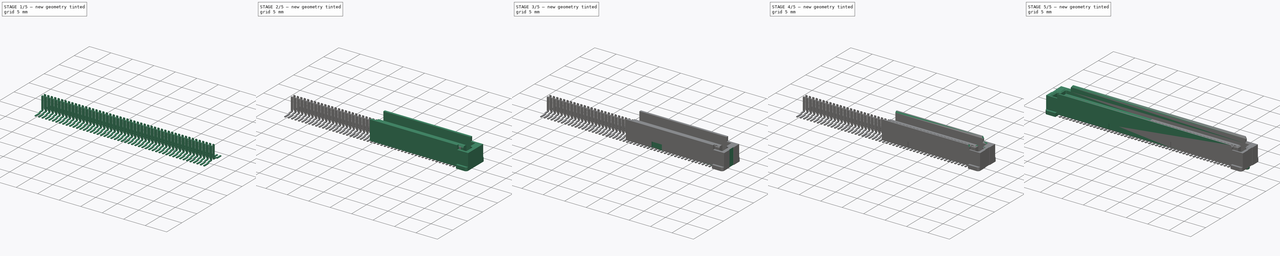
[diagram: build sequence overview — one tinted view per stage of 5, left to right]
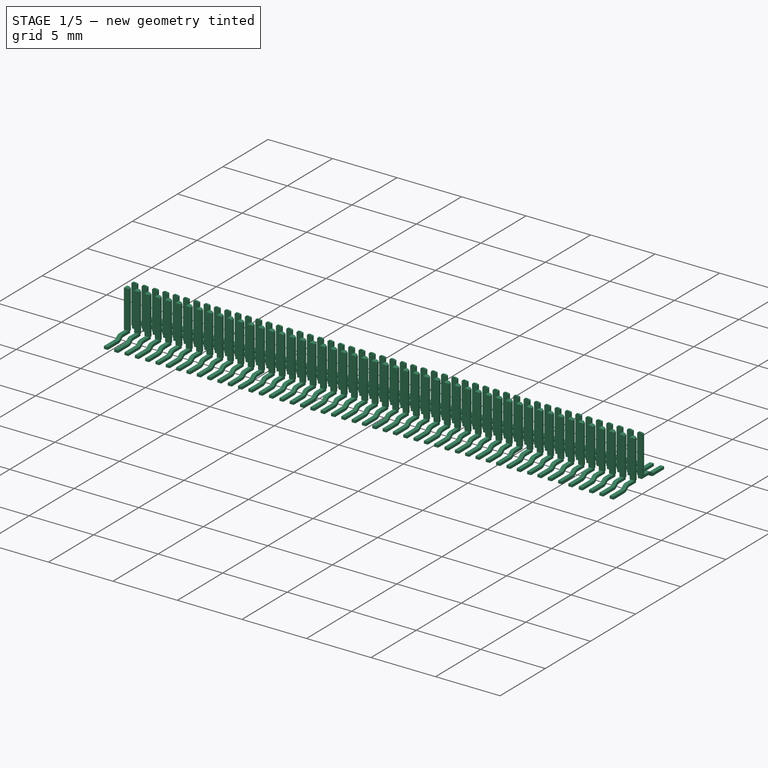
[diagram: stage 1 of 5 — iso view after this stage's code; geometry added in this stage tinted green]
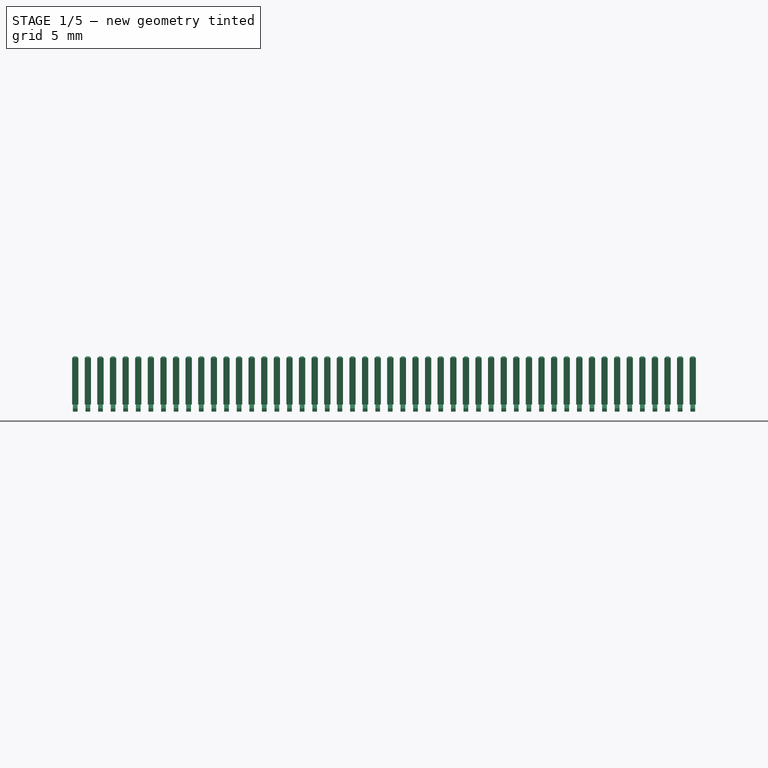
[diagram: stage 1 of 5 — front view after this stage's code; geometry added in this stage tinted green]
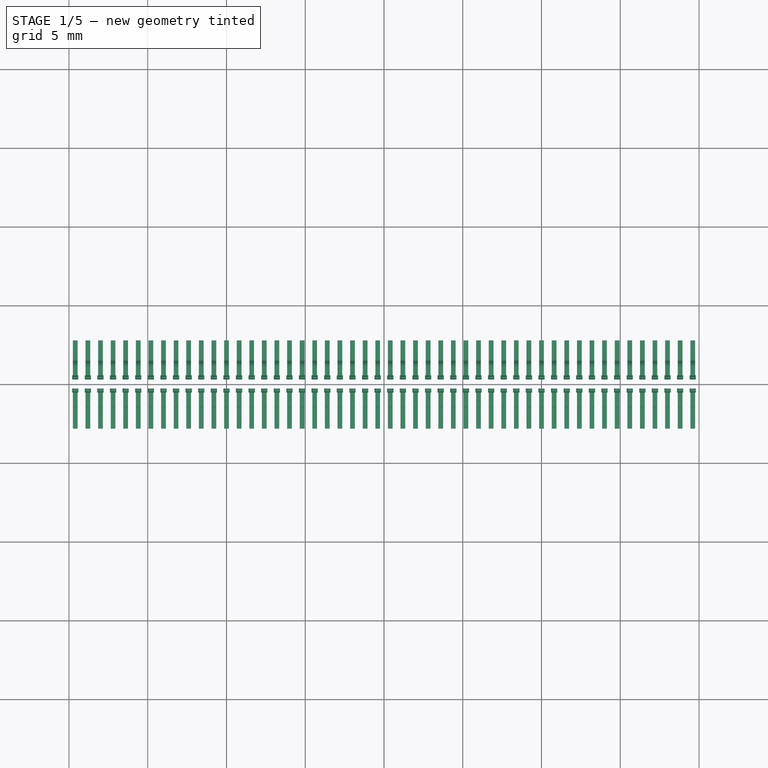
[diagram: stage 1 of 5 — top view after this stage's code; geometry added in this stage tinted green]
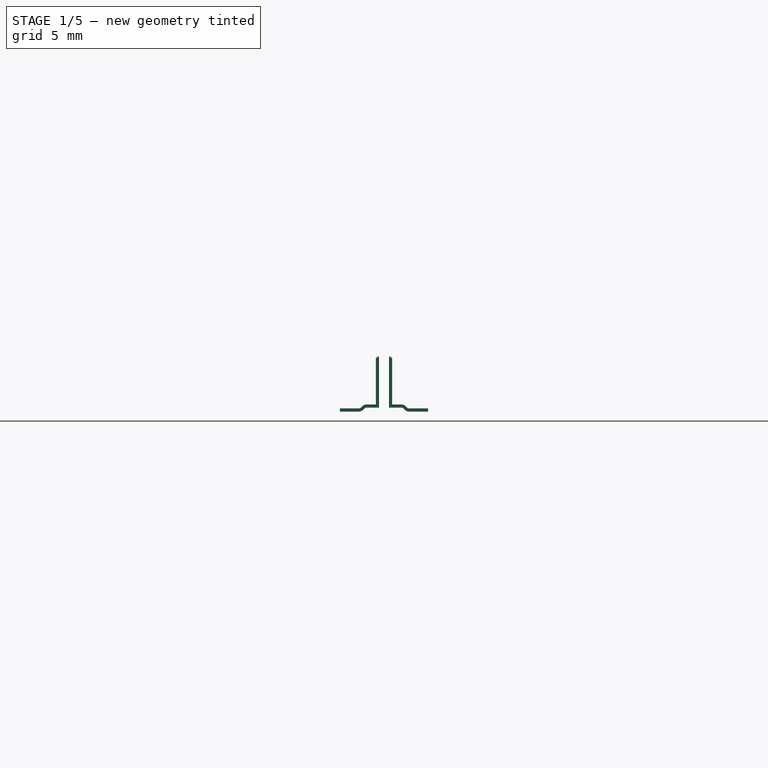
[diagram: stage 1 of 5 — right view after this stage's code; geometry added in this stage tinted green]
FCSTD DOCUMENT  (FreeCAD 1.0R38641 +468 (Git))
Label: test
License: All rights reserved
objects: Sketcher::SketchObject×14, PartDesign::Pocket×10, PartDesign::Chamfer×7, PartDesign::Pad×4, PartDesign::Body×3, PartDesign::Plane×2, Part::Mirroring×2, Spreadsheet::Sheet×1, PartDesign::LinearPattern×1, PartDesign::Mirrored×1, PartDesign::MultiTransform×1, Part::MultiFuse×1, PartDesign::FeatureBase×1, PartDesign::Fillet×1, Part::FeaturePython×1, Part::Compound×1
note: 111 computed .brp shape members not serialized (recipe doc carries the construction recipe); baked Part::Feature solids carry a one-line shape summary decoded from their .brp

FEATURE [PartDesign::Body] Body001
  AllowCompound = false
  BaseFeature = -> Fusion
  Group = -> [BaseFeature,Sketch011,Pad002,DatumPlane001,Sketch013,Pocket008,Fillet]
  Origin = -> Origin001
  Tip = -> Fillet
FEATURE [Sketcher::SketchObject] Sketch
  ArcFitTolerance = 0
  AttachmentSupport = -> [YZ_Plane002]
  FullyConstrained = true
  MakeInternals = false
  MapMode = 5
  Placement = pos=(0,0,0) rot=(0.57735,0.57735,0.57735;2.0944rad)
  sketch-geometry (19):
    g0: LineSegment [constr] StartX=0.315 StartY=6e-16 StartZ=0 EndX=0 EndY=6e-16 EndZ=0
    g1: LineSegment [constr] StartX=0 StartY=6e-16 StartZ=0 EndX=-0.315 EndY=6e-16 EndZ=0
    g2: LineSegment [constr] StartX=-0.315 StartY=6e-16 StartZ=0 EndX=-1.6 EndY=6e-16 EndZ=0
    g3: LineSegment [constr] StartX=-0.315 StartY=6e-16 StartZ=0 EndX=-0.315 EndY=0.25 EndZ=0
    g4: LineSegment StartX=-0.315 StartY=0.25 StartZ=0 EndX=-0.315 EndY=3.5 EndZ=0
    g5: LineSegment StartX=-0.315 StartY=3.5 StartZ=0 EndX=-0.515 EndY=3.5 EndZ=0
    g6: LineSegment StartX=-0.515 StartY=3.5 StartZ=0 EndX=-0.515 EndY=0.45 EndZ=0
    g7: LineSegment StartX=-0.515 StartY=0.45 StartZ=0 EndX=-1.10147 EndY=0.45 EndZ=0
    g8: LineSegment StartX=-1.38431 StartY=0.332843 StartZ=0 EndX=-1.45858 EndY=0.258579 EndZ=0
    g9: LineSegment StartX=-1.6 StartY=0.2 StartZ=0 EndX=-2.8 EndY=0.2 EndZ=0
    g10: LineSegment StartX=-2.8 StartY=0.2 StartZ=0 EndX=-2.8 EndY=6e-16 EndZ=0
    g11: LineSegment StartX=-2.8 StartY=6e-16 StartZ=0 EndX=-1.6 EndY=6e-16 EndZ=0
    g12: LineSegment StartX=-1.31716 StartY=0.117157 StartZ=0 EndX=-1.24289 EndY=0.191421 EndZ=0
    g13: LineSegment StartX=-1.10147 StartY=0.25 StartZ=0 EndX=-0.315 EndY=0.25 EndZ=0
    g14: LineSegment [constr] StartX=-0.515 StartY=0.45 StartZ=0 EndX=-0.515 EndY=0.25 EndZ=0
    g15: ArcOfCircle CenterX=-1.6 CenterY=0.4 CenterZ=0 NormalX=0 NormalY=0 NormalZ=1 AngleXU=0 Radius=0.2 StartAngle=4.71239 EndAngle=5.49779
    g16: ArcOfCircle CenterX=-1.6 CenterY=0.4 CenterZ=0 NormalX=0 NormalY=0 NormalZ=1 AngleXU=0 Radius=0.4 StartAngle=4.71239 EndAngle=5.49779
    g17: ArcOfCircle CenterX=-1.10147 CenterY=0.05 CenterZ=0 NormalX=0 NormalY=0 NormalZ=1 AngleXU=0 Radius=0.2 StartAngle=1.5708 EndAngle=2.3562
    g18: ArcOfCircle CenterX=-1.10147 CenterY=0.05 CenterZ=0 NormalX=0 NormalY=0 NormalZ=1 AngleXU=0 Radius=0.4 StartAngle=1.5708 EndAngle=2.35619
  constraints (57):
    c: Horizontal(g0)
    c: Coincident(g1,g0)
    c: Horizontal(g1)
    c: Coincident(g2,g1)
    c: Horizontal(g2)
    c: Coincident(g3,g1)
    c: Vertical(g3)
    c: Equal(g1,g0)
    c: Coincident(g3,g4)
    c: Vertical(g4)
    c: Coincident(g4,g5)
    c: Horizontal(g5)
    c: Coincident(g5,g6)
    c: Vertical(g6)
    c: Coincident(g6,g7)
    c: Horizontal(g7)
    c: Horizontal(g9)
    c: Coincident(g9,g10)
    c: Vertical(g10)
    c: Coincident(g10,g11)
    c: Coincident(g3,g13)
    c: Horizontal(g13)
    c: Horizontal(g11)
    c: Parallel(g12,g8)
    c: Equal(g5,g10)
    c: Coincident(g14,g6)
    c: PointOnObject(g14,g13)
    c: Vertical(g14)
    c: Equal(g14,g5)
    c: Coincident(g8,g15)
    c: Coincident(g9,g15)
    c: Tangent(g15,g9)
    c: Tangent(g15,g8)
    c: Radius(g15) = 0.2
    c: Coincident(g16,g11)
    c: Coincident(g12,g16)
    c: Tangent(g16,g12)
    c: Tangent(g16,g11)
    c: Coincident(g2,g11)
    c: Coincident(g16,g15)
    c: Coincident(g17,g12)
    c: Coincident(g17,g13)
    c: Coincident(g18,g8)
    c: Coincident(g18,g7)
    c: Equal(g17,g15)
    c: Coincident(g18,g17)
    c: Tangent(g8,g18)
    c: DistanceX(g11) = 1.2
    c: Coincident(g0,g-1)
    c: DistanceX(g1,g0) = 0.63
    c: DistanceY(g0,g4) = 3.5
    c: Tangent(g18,g7)
    c: Tangent(g17,g13)
    c: Angle(g8,g9) = 2.35619
    c: DistanceY(g10,g10) = 0.2
    c: DistanceY(g0,g4) = 0.25
    c: DistanceX(g10,g0) = 2.8
FEATURE [PartDesign::Pad] Pad003
  Direction = (1,0,0)
  Length = 0.2
  Length2 = 0.2
  Placement = pos=(0,0,0) rot=(1,1,1;2.0944rad)
  Profile = -> Sketch
  ReferenceAxis = -> Sketch [N_Axis]
  Suppressed = false
  Type = 4
FEATURE [Sketcher::SketchObject] Sketch014
  ArcFitTolerance = 0
  AttachmentSupport = -> [XZ_Plane002]
  FullyConstrained = true
  MakeInternals = false
  MapMode = 5
  Placement = pos=(0,0,0) rot=(1,0,0;1.5708rad)
  sketch-geometry (10):
    g0: LineSegment StartX=-0.2 StartY=0.45 StartZ=0 EndX=-0.15 EndY=0.45 EndZ=0
    g1: LineSegment StartX=-0.15 StartY=0.45 StartZ=0 EndX=-0.15 EndY=0 EndZ=0
    g2: LineSegment StartX=-0.15 StartY=0 StartZ=0 EndX=-0.2 EndY=0 EndZ=0
    g3: LineSegment StartX=-0.2 StartY=0 StartZ=0 EndX=-0.2 EndY=0.45 EndZ=0
    g4: LineSegment StartX=0.15 StartY=0.45 StartZ=0 EndX=0.2 EndY=0.45 EndZ=0
    g5: LineSegment StartX=0.2 StartY=0.45 StartZ=0 EndX=0.2 EndY=0 EndZ=0
    g6: LineSegment StartX=0.2 StartY=0 StartZ=0 EndX=0.15 EndY=0 EndZ=0
    g7: LineSegment StartX=0.15 StartY=0 StartZ=0 EndX=0.15 EndY=0.45 EndZ=0
    g8: LineSegment [constr] StartX=-0.15 StartY=0.45 StartZ=0 EndX=0.15 EndY=0.45 EndZ=0
    g9: LineSegment [constr] StartX=-0.15 StartY=0 StartZ=0 EndX=0.15 EndY=0 EndZ=0
  constraints (27):
    c: Coincident(g0,g1)
    c: Coincident(g1,g2)
    c: Coincident(g2,g3)
    c: Coincident(g3,g0)
    c: Horizontal(g0)
    c: Horizontal(g2)
    c: Vertical(g1)
    c: Vertical(g3)
    c: PointOnObject(g1,g-1)
    c: Coincident(g4,g5)
    c: Coincident(g5,g6)
    c: Coincident(g6,g7)
    c: Coincident(g7,g4)
    c: Horizontal(g4)
    c: Horizontal(g6)
    c: Vertical(g5)
    c: Vertical(g7)
    c: PointOnObject(g5,g-1)
    c: Coincident(g8,g0)
    c: Coincident(g8,g4)
    c: Coincident(g9,g1)
    c: Coincident(g9,g6)
    c: Equal(g0,g4)
    c: Symmetric(g0,g4,g-2)
    c: DistanceX(g2,g5) = 0.4
    c: DistanceX(g9,g9) = 0.3
    c: DistanceY(g5,g5) = 0.45
FEATURE [PartDesign::Pocket] Pocket009
  BaseFeature = -> Pad003
  Direction = (0,1,-2e-16)
  Length = 5
  Length2 = 5
  Midplane = true
  Placement = pos=(0,0,0) rot=(1,1,1;2.0944rad)
  Profile = -> Sketch014
  ReferenceAxis = -> Sketch014 [N_Axis]
  Suppressed = false
  Type = 1
FEATURE [PartDesign::Chamfer] Chamfer006
  Angle = 45
  Base = -> Pocket009 [Edge47,Edge48,Edge49]
  BaseFeature = -> Pocket009
  ChamferType = 0
  FlipDirection = false
  Placement = pos=(0,0,0) rot=(1,1,1;2.0944rad)
  Size = 0.1
  Size2 = 1
  SupportTransform = false
  Suppressed = false
  UseAllEdges = false
FEATURE [PartDesign::Body] Body002
  AllowCompound = false
  Group = -> [Sketch,Pad003,Sketch014,Pocket009,Chamfer006]
  Origin = -> Origin002
  Tip = -> Chamfer006
FEATURE [Part::FeaturePython] Array  # Draft array (typed FeaturePython)
  AlwaysSyncPlacement = false
  Angle = 360
  ArrayType = 0
  Axis = (0,0,1)
  Base = -> Body002
  Center = (0,0,0)
  Count = 50
  ExpandArray = false
  Fuse = false
  IntervalAxis = (0,0,0)
  IntervalX = (0.8,0,0)
  IntervalY = (0,100,0)
  IntervalZ = (0,0,100)
  NumberCircles = 3
  NumberPolar = 5
  NumberX = 50
  NumberY = 1
  NumberZ = 1
  Placement = pos=(-19.6,0,0) rot=(0,0,1;0rad)
  PlacementList = 50 placements: arithmetic series from (0,0,0) step (0.8,0,0) to (39.2,0,0)
  RadialDistance = 50
  ScaleList = (50) [(1,1,1),(1,1,1),(1,1,1),(1,1,1),(1,1,1),(1,1,1),(1,1,1),(1,1,1),(1,1,1),(1,1,1),(1,1,1),(1,1,1),(1,1,1),(1,1,1),(1,1,1),(1,1,1),(1,1,1),(1,1,1),+32 more]
  Symmetry = 1
  TangentialDistance = 25
  expr: .IntervalX.x = <<Master>>.pin_pitch
  expr: .Placement.Base.x = -<<Master>>.length_pin / 2
  expr: NumberX = <<Master>>.pins_side
FEATURE [Part::Mirroring] Part__Mirroring001  label="Array (Mirror #2)"
  Base = (0,0,0)
  Normal = (0,1,0)
  Source = -> Array
FEATURE [Part::Compound] Compound
  Links = -> [Array,Part__Mirroring001]
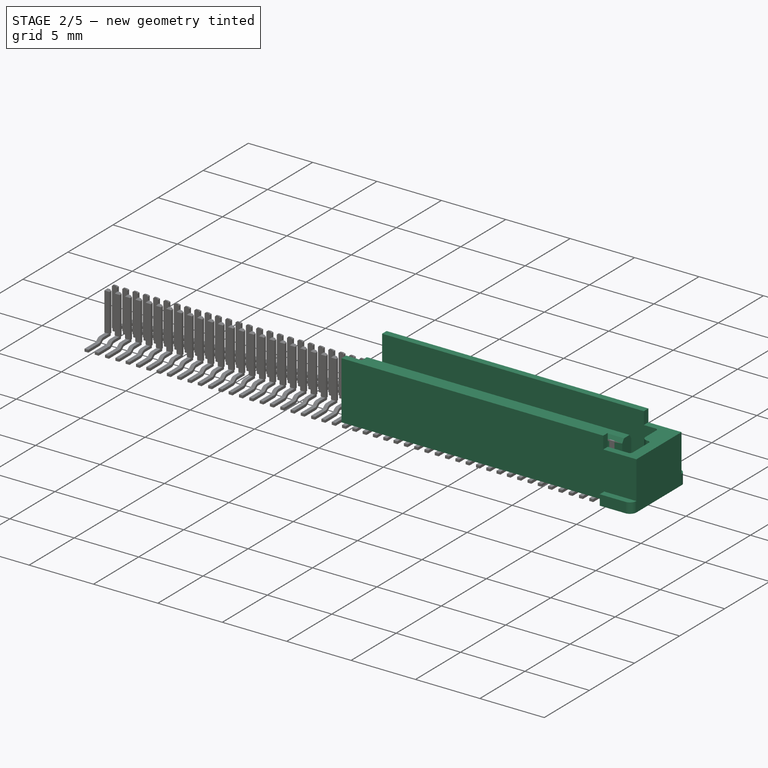
[diagram: stage 2 of 5 — iso view after this stage's code; geometry added in this stage tinted green]
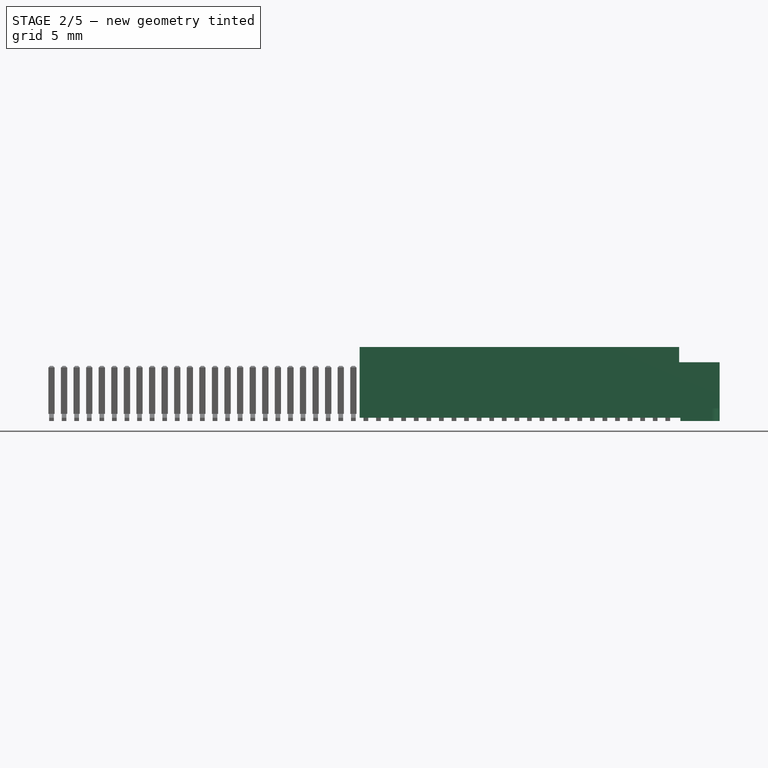
[diagram: stage 2 of 5 — front view after this stage's code; geometry added in this stage tinted green]
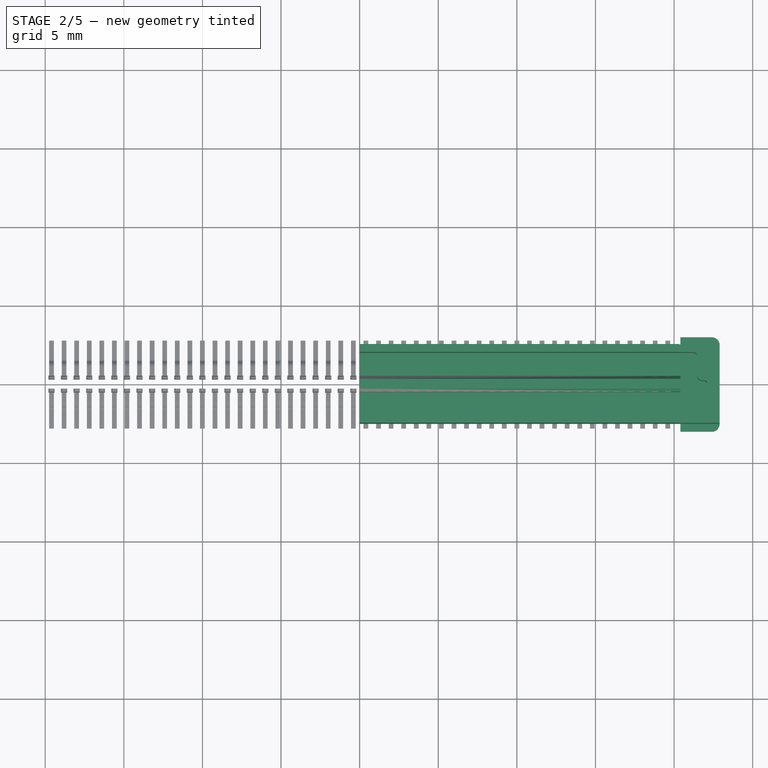
[diagram: stage 2 of 5 — top view after this stage's code; geometry added in this stage tinted green]
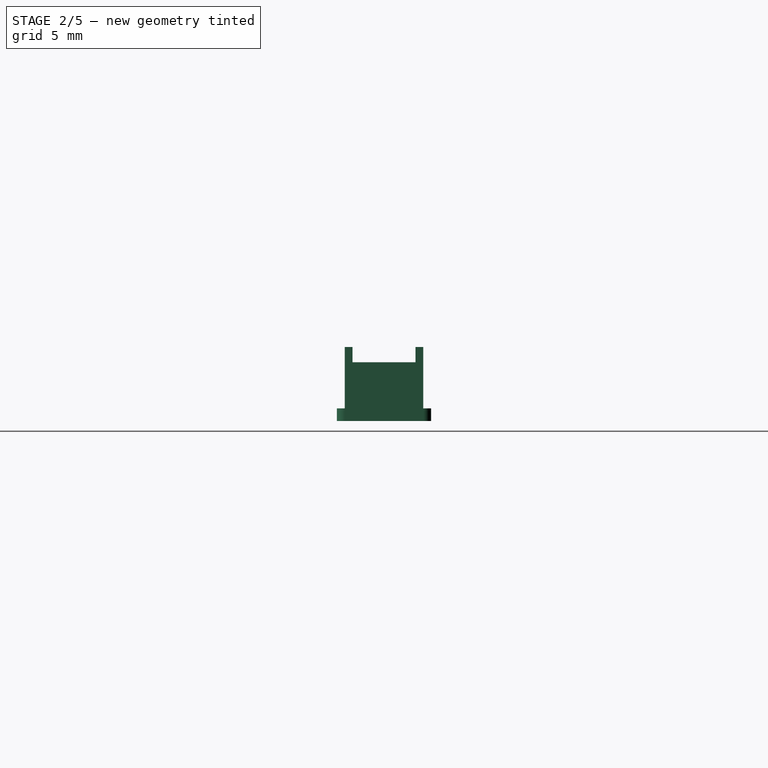
[diagram: stage 2 of 5 — right view after this stage's code; geometry added in this stage tinted green]
FEATURE [Spreadsheet::Sheet] Spreadsheet  label="Master"
  cells = A1='Constants; A2='pins; B2(pins)=100; C2='Number of pins Valid numbers: 20, 40, 60, 80, 100, 120, 140, 160, 180, 200 ; A4='pin_pitch; B4(pin_pitch)==0.8 mm; C4='Pin pitch; A5='height; B5(height)==4.7 mm; C5='Height of housing; A6='width; B6(width)==5 mm; C6='Width of housing; A7='width_int; B7(width_int)==3.6 mm; C7='Width of opening; A9='Calculated; A10='pins_side; B10(pins_side)==pins / 2; C10='Pins per row; A11='length_pin; B11(length_pin)==7.2 mm + 8 mm * (pins_side / 10 - 1); C11='Dim A: Total with of pins; A12='length_tot; B12(length_tot)==13.8 mm + 8 mm * (pins_side / 10 - 1); C12='Dim B: Length of housing, Valid lengths: 6.0, 8.0, 10.0, 12.0, 14.0, 16.0, 18.0, 20.0, 22.0, 24.0, 26.0, 28.0, 30.0, 32.0, 34.0; A13='key; B13(key)==12.2 mm + 8 mm * (pins_side / 10 - 1); C13='Dim C: Mounting key spacing
FEATURE [PartDesign::Plane] DatumPlane
  AttachmentOffset = pos=(0,0,4.7) rot=(0,0,1;0rad)
  AttachmentSupport = -> [XY_Plane]
  Length = 60
  MapMode = 5
  Placement = pos=(0,0,4.7) rot=(0,0,1;0rad)
  ResizeMode = 0
  Width = 60
  expr: .AttachmentOffset.Base.z = <<Master>>.height
FEATURE [Sketcher::SketchObject] Sketch001
  ArcFitTolerance = 0
  AttachmentSupport = -> [XY_Plane]
  FullyConstrained = true
  MakeInternals = false
  MapMode = 5
  expr: Constraints[11] = <<Master>>.length_tot
  expr: Constraints[7] = <<Master>>.width
  sketch-geometry (5):
    g0: LineSegment StartX=0 StartY=-2.5 StartZ=0 EndX=22.9 EndY=-2.5 EndZ=0
    g1: LineSegment StartX=22.9 StartY=-2.5 StartZ=0 EndX=22.9 EndY=2.5 EndZ=0
    g2: LineSegment StartX=22.9 StartY=2.5 StartZ=0 EndX=0 EndY=2.5 EndZ=0
    g3: LineSegment StartX=0 StartY=2.5 StartZ=0 EndX=0 EndY=-2.5 EndZ=0
    g4: LineSegment [constr] StartX=0 StartY=2.5 StartZ=0 EndX=-22.9 EndY=2.5 EndZ=0
  constraints (14):
    c: Coincident(g0,g1)
    c: Coincident(g1,g2)
    c: Coincident(g2,g3)
    c: Coincident(g3,g0)
    c: Horizontal(g0)
    c: Horizontal(g2)
    c: Vertical(g1)
    c: DistanceY(g1) = 5
    c: Coincident(g4,g2)
    c: Horizontal(g4)
    c: Equal(g4,g2)
    c: DistanceX(g4,g1) = 45.8
    c: Symmetric(g2,g0,g-1)
    c: PointOnObject(g-1,g3)
FEATURE [PartDesign::Pad] Pad
  Direction = (0,0,1)
  Length = 4.7
  Length2 = 10
  Profile = -> Sketch001
  ReferenceAxis = -> Sketch001 [N_Axis]
  Suppressed = false
  Type = 0
  expr: Length = <<Master>>.height
FEATURE [Sketcher::SketchObject] Sketch002
  ArcFitTolerance = 0
  AttachmentSupport = -> [DatumPlane]
  FullyConstrained = true
  MakeInternals = false
  MapMode = 5
  Placement = pos=(0,0,4.7) rot=(0,0,1;0rad)
  expr: Constraints[0] = <<Master>>.width
  expr: Constraints[39] = <<Master>>.length_tot / 2
  sketch-geometry (15):
    g0: LineSegment [constr] StartX=22.9 StartY=2.5 StartZ=0 EndX=22.9 EndY=-2.5 EndZ=0
    g1: LineSegment StartX=0 StartY=-2 StartZ=0 EndX=0 EndY=-0.5 EndZ=0
    g2: LineSegment StartX=0 StartY=-0.5 StartZ=0 EndX=20.4 EndY=-0.5 EndZ=0
    g3: LineSegment StartX=20.4 StartY=-0.5 StartZ=0 EndX=20.4 EndY=0.5 EndZ=0
    g4: LineSegment StartX=20.4 StartY=0.5 StartZ=0 EndX=0 EndY=0.5 EndZ=0
    g5: LineSegment StartX=0 StartY=0.5 StartZ=0 EndX=0 EndY=2 EndZ=0
    g6: LineSegment StartX=0 StartY=2 StartZ=0 EndX=21.24 EndY=2 EndZ=0
    g7: LineSegment StartX=22.115 StartY=1e-16 StartZ=0 EndX=22.115 EndY=-1.8 EndZ=0
    g8: LineSegment StartX=21.915 StartY=-2 StartZ=0 EndX=0 EndY=-2 EndZ=0
    g9: ArcOfCircle CenterX=21.915 CenterY=-1.8 CenterZ=0 NormalX=0 NormalY=0 NormalZ=1 AngleXU=0 Radius=0.2 StartAngle=4.71239 EndAngle=6.28319
    g10: ArcOfCircle CenterX=21.24 CenterY=1.8 CenterZ=0 NormalX=0 NormalY=0 NormalZ=1 AngleXU=0 Radius=0.2 StartAngle=0 EndAngle=1.5708
    g11: LineSegment StartX=21.44 StartY=0.6 StartZ=0 EndX=21.44 EndY=1.8 EndZ=0
    g12: ArcOfCircle CenterX=21.84 CenterY=0.6 CenterZ=0 NormalX=0 NormalY=0 NormalZ=1 AngleXU=0 Radius=0.4 StartAngle=3.14159 EndAngle=4.71239
    g13: ArcOfCircle CenterX=21.915 CenterY=1e-16 CenterZ=0 NormalX=0 NormalY=0 NormalZ=1 AngleXU=0 Radius=0.2 StartAngle=0 EndAngle=1.5708
    g14: LineSegment StartX=21.84 StartY=0.2 StartZ=0 EndX=21.915 EndY=0.2 EndZ=0
  constraints (40):
    c: DistanceY(g0,g0) = 5
    c: Symmetric(g0,g0,g-1)
    c: Coincident(g5,g6)
    c: Coincident(g4,g5)
    c: Coincident(g1,g2)
    c: Coincident(g1,g8)
    c: Coincident(g3,g4)
    c: Coincident(g2,g3)
    c: Vertical(g1)
    c: Vertical(g5)
    c: Vertical(g7)
    c: Vertical(g11)
    c: Horizontal(g8)
    c: Horizontal(g2)
    c: Horizontal(g4)
    c: Horizontal(g6)
    c: Horizontal(g14)
    c: Equal(g13,g9)
    c: Radius(g9) = 0.2
    c: Radius(g12) = 0.4
    c: Equal(g13,g10)
    c: Equal(g1,g5)
    c: Tangent(g8,g9) = 1.5708
    c: Tangent(g7,g9) = 1.5708
    c: Tangent(g7,g13) = 1.5708
    c: Tangent(g13,g14) = 1.5708
    c: Tangent(g12,g14) = -1.5708
    c: Tangent(g11,g12) = 1.5708
    c: Tangent(g10,g11) = -1.5708
    c: Tangent(g6,g10) = 1.5708
    c: DistanceY(g11,g11) = 1.2
    c: DistanceX(g2,g0) = 2.5
    c: DistanceX(g10,g0) = 1.46
    c: PointOnObject(g5,g-2)
    c: PointOnObject(g1,g-2)
    c: DistanceY(g1,g5) = 4
    c: DistanceY(g1,g4) = 1
    c: Symmetric(g3,g2,g-1)
    c: DistanceX(g7,g0) = 0.785
    c: DistanceX(g5,g0) = 22.9
FEATURE [PartDesign::Pocket] Pocket
  BaseFeature = -> Pad
  Direction = (0,0,-1)
  Length = 3.4
  Length2 = 5
  Profile = -> Sketch002
  ReferenceAxis = -> Sketch002 [N_Axis]
  Suppressed = false
  Type = 0
FEATURE [Sketcher::SketchObject] Sketch003
  ArcFitTolerance = 0
  AttachmentSupport = -> [DatumPlane]
  FullyConstrained = true
  MakeInternals = false
  MapMode = 5
  Placement = pos=(0,0,4.7) rot=(0,0,1;0rad)
  expr: Constraints[14] = <<Master>>.length_tot / 2
  expr: Constraints[15] = <<Master>>.width
  sketch-geometry (9):
    g0: LineSegment StartX=20.325 StartY=-2.5 StartZ=0 EndX=20.325 EndY=-1 EndZ=0
    g1: LineSegment StartX=20.325 StartY=1 StartZ=0 EndX=20.825 EndY=1 EndZ=0
    g2: LineSegment StartX=20.825 StartY=1 StartZ=0 EndX=20.825 EndY=-1 EndZ=0
    g3: LineSegment StartX=20.825 StartY=-1 StartZ=0 EndX=20.325 EndY=-1 EndZ=0
    g4: LineSegment StartX=20.325 StartY=1 StartZ=0 EndX=20.325 EndY=2.5 EndZ=0
    g5: LineSegment StartX=20.325 StartY=2.5 StartZ=0 EndX=22.9 EndY=2.5 EndZ=0
    g6: LineSegment StartX=22.9 StartY=2.5 StartZ=0 EndX=22.9 EndY=-2.5 EndZ=0
    g7: LineSegment StartX=22.9 StartY=-2.5 StartZ=0 EndX=20.325 EndY=-2.5 EndZ=0
    g8: LineSegment [constr] StartX=20.325 StartY=1 StartZ=0 EndX=20.325 EndY=-1 EndZ=0
  constraints (25):
    c: Vertical(g0)
    c: Coincident(g1,g2)
    c: Coincident(g2,g3)
    c: Vertical(g4)
    c: Coincident(g4,g5)
    c: Horizontal(g5)
    c: Coincident(g5,g6)
    c: Coincident(g6,g7)
    c: Coincident(g7,g0)
    c: Horizontal(g7)
    c: Vertical(g2)
    c: Horizontal(g1)
    c: Horizontal(g3)
    c: DistanceX(g5) = 2.575
    c: DistanceX(g-1,g5) = 22.9
    c: DistanceY(g6,g6) = 5
    c: Coincident(g8,g1)
    c: Coincident(g8,g0)
    c: Vertical(g8)
    c: Equal(g4,g0)
    c: DistanceY(g8,g8) = 2
    c: DistanceX(g3,g3) = 0.5
    c: Coincident(g0,g3)
    c: Coincident(g4,g1)
    c: Symmetric(g5,g6,g-1)
FEATURE [PartDesign::Pocket] Pocket001
  BaseFeature = -> Pocket
  Direction = (0,0,-1)
  Length = 0.97
  Length2 = 5
  Profile = -> Sketch003
  ReferenceAxis = -> Sketch003 [N_Axis]
  Suppressed = false
  Type = 0
FEATURE [Sketcher::SketchObject] Sketch004
  ArcFitTolerance = 0
  AttachmentSupport = -> [YZ_Plane]
  FullyConstrained = true
  MakeInternals = false
  MapMode = 5
  Placement = pos=(0,0,0) rot=(0.57735,0.57735,0.57735;2.0944rad)
  expr: Constraints[8] = <<Master>>.height
  sketch-geometry (11):
    g0: LineSegment StartX=-0.5 StartY=4.7 StartZ=0 EndX=0.5 EndY=4.7 EndZ=0
    g1: LineSegment StartX=0.5 StartY=4.7 StartZ=0 EndX=0.5 EndY=3.7 EndZ=0
    g2: LineSegment StartX=0.31 StartY=3.7 StartZ=0 EndX=-0.31 EndY=3.7 EndZ=0
    g3: LineSegment StartX=-0.5 StartY=3.7 StartZ=0 EndX=-0.5 EndY=4.7 EndZ=0
    g4: LineSegment StartX=-0.5 StartY=3.7 StartZ=0 EndX=-0.5 EndY=3.4 EndZ=0
    g5: LineSegment StartX=-0.5 StartY=3.4 StartZ=0 EndX=-0.31 EndY=3.7 EndZ=0
    g6: LineSegment StartX=0.5 StartY=3.7 StartZ=0 EndX=0.5 EndY=3.4 EndZ=0
    g7: LineSegment StartX=0.5 StartY=3.4 StartZ=0 EndX=0.31 EndY=3.7 EndZ=0
    g8: LineSegment [constr] StartX=-0.5 StartY=3.4 StartZ=0 EndX=0.5 EndY=3.4 EndZ=0
    g9: LineSegment [constr] StartX=-0.5 StartY=3.7 StartZ=0 EndX=-0.31 EndY=3.7 EndZ=0
    g10: LineSegment [constr] StartX=0.31 StartY=3.7 StartZ=0 EndX=0.5 EndY=3.7 EndZ=0
  constraints (29):
    c: Coincident(g0,g1)
    c: Coincident(g3,g0)
    c: Horizontal(g2)
    c: Vertical(g1)
    c: Vertical(g3)
    c: DistanceY(g3) = 1
    c: Symmetric(g0,g0,g-2)
    c: DistanceX(g0,g0) = 1
    c: DistanceY(g-1,g0) = 4.7
    c: Coincident(g3,g4)
    c: Vertical(g4)
    c: Coincident(g4,g5)
    c: Coincident(g1,g6)
    c: Vertical(g6)
    c: Coincident(g6,g7)
    c: Coincident(g8,g4)
    c: Coincident(g8,g6)
    c: Horizontal(g8)
    c: Coincident(g2,g5)
    c: Coincident(g2,g7)
    c: Coincident(g9,g3)
    c: Coincident(g9,g2)
    c: Horizontal(g9)
    c: Coincident(g10,g2)
    c: Coincident(g10,g1)
    c: Horizontal(g10)
    c: Equal(g10,g9)
    c: DistanceY(g4,g4) = 0.3
    c: DistanceX(g9,g9) = 0.19
FEATURE [PartDesign::Pocket] Pocket002
  BaseFeature = -> Pocket001
  Direction = (-1,0,0)
  Length = 20.9
  Length2 = 5
  Profile = -> Sketch004
  ReferenceAxis = -> Sketch004 [N_Axis]
  Reversed = true
  Suppressed = false
  Type = 0
  expr: Length = <<Master>>.length_tot / 2 - 2 mm
FEATURE [Sketcher::SketchObject] Sketch005
  ArcFitTolerance = 0
  AttachmentSupport = -> [XY_Plane]
  FullyConstrained = true
  MakeInternals = false
  MapMode = 5
  expr: Constraints[10] = <<Master>>.length_tot / 2
  expr: Constraints[5] = <<Master>>.width
  sketch-geometry (6):
    g0: LineSegment StartX=22.4 StartY=3 StartZ=0 EndX=20.4 EndY=3 EndZ=0
    g1: LineSegment StartX=20.4 StartY=3 StartZ=0 EndX=20.4 EndY=-3 EndZ=0
    g2: LineSegment StartX=20.4 StartY=-3 StartZ=0 EndX=22.4 EndY=-3 EndZ=0
    g3: LineSegment StartX=22.9 StartY=2.5 StartZ=0 EndX=22.9 EndY=-2.5 EndZ=0
    g4: ArcOfCircle CenterX=22.4 CenterY=2.5 CenterZ=0 NormalX=0 NormalY=0 NormalZ=1 AngleXU=0 Radius=0.5 StartAngle=0 EndAngle=1.5708
    g5: ArcOfCircle CenterX=22.4 CenterY=-2.5 CenterZ=0 NormalX=0 NormalY=0 NormalZ=1 AngleXU=0 Radius=0.5 StartAngle=4.71239 EndAngle=6.28319
  constraints (16):
    c: Coincident(g1,g2)
    c: Coincident(g0,g1)
    c: Coincident(g2,g5)
    c: Radius(g4) = 0.5
    c: Equal(g4,g5)
    c: DistanceY(g3,g3) = 5
    c: Symmetric(g3,g3,g-1)
    c: Horizontal(g0)
    c: Horizontal(g2)
    c: Vertical(g1)
    c: DistanceX(g-1,g3) = 22.9
    c: DistanceY(g1,g1) = 6
    c: DistanceX(g0,g3) = 2.5
    c: Tangent(g3,g4) = 1.5708
    c: Tangent(g3,g5) = 1.5708
    c: Tangent(g0,g4) = -1.5708
FEATURE [PartDesign::Pad] Pad001
  BaseFeature = -> Pocket002
  Direction = (0,0,1)
  Length = 0.8
  Length2 = 10
  Profile = -> Sketch005
  ReferenceAxis = -> Sketch005 [N_Axis]
  Suppressed = false
  Type = 0
FEATURE [Sketcher::SketchObject] Sketch006
  ArcFitTolerance = 0
  AttachmentSupport = -> [XY_Plane]
  FullyConstrained = true
  MakeInternals = false
  MapMode = 5
  expr: Constraints[10] = <<Master>>.length_tot / 2
  expr: Constraints[4] = <<Master>>.width
  sketch-geometry (7):
    g0: LineSegment StartX=0 StartY=2.5 StartZ=0 EndX=20.4 EndY=2.5 EndZ=0
    g1: LineSegment StartX=20.4 StartY=2.5 StartZ=0 EndX=20.4 EndY=-2.5 EndZ=0
    g2: LineSegment StartX=20.4 StartY=-2.5 StartZ=0 EndX=0 EndY=-2.5 EndZ=0
    g3: LineSegment StartX=0 StartY=-2.5 StartZ=0 EndX=0 EndY=2.5 EndZ=0
    g4: LineSegment [constr] StartX=22.9 StartY=2.5 StartZ=0 EndX=22.9 EndY=-2.5 EndZ=0
    g5: LineSegment [constr] StartX=20.4 StartY=2.5 StartZ=0 EndX=22.9 EndY=2.5 EndZ=0
    g6: LineSegment [constr] StartX=20.4 StartY=-2.5 StartZ=0 EndX=22.9 EndY=-2.5 EndZ=0
  constraints (19):
    c: Coincident(g2,g3)
    c: Coincident(g0,g3)
    c: Coincident(g1,g2)
    c: Coincident(g0,g1)
    c: DistanceY(g4,g4) = 5
    c: Symmetric(g4,g4,g-1)
    c: Horizontal(g0)
    c: Horizontal(g2)
    c: Vertical(g1)
    c: Vertical(g3)
    c: DistanceX(g0,g4) = 22.9
    c: Coincident(g5,g0)
    c: Coincident(g5,g4)
    c: Horizontal(g5)
    c: Coincident(g6,g1)
    c: Coincident(g6,g4)
    c: Horizontal(g6)
    c: DistanceX(g5,g5) = 2.5
    c: PointOnObject(g0,g-2)
FEATURE [PartDesign::Pocket] Pocket003
  BaseFeature = -> Pad001
  Direction = (0,0,-1)
  Length = 0.2
  Length2 = 5
  Profile = -> Sketch006
  ReferenceAxis = -> Sketch006 [N_Axis]
  Reversed = true
  Suppressed = false
  Type = 0
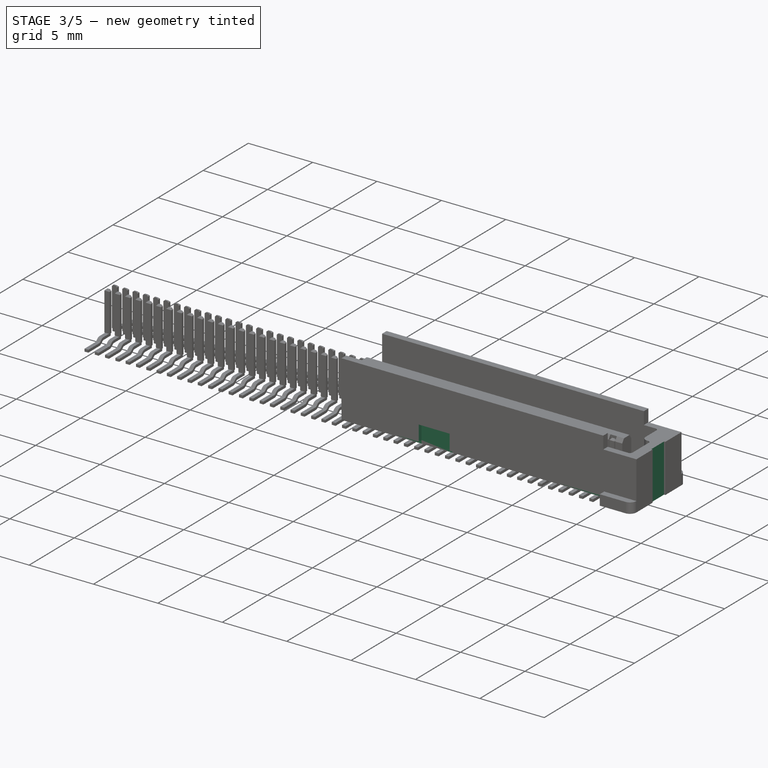
[diagram: stage 3 of 5 — iso view after this stage's code; geometry added in this stage tinted green]
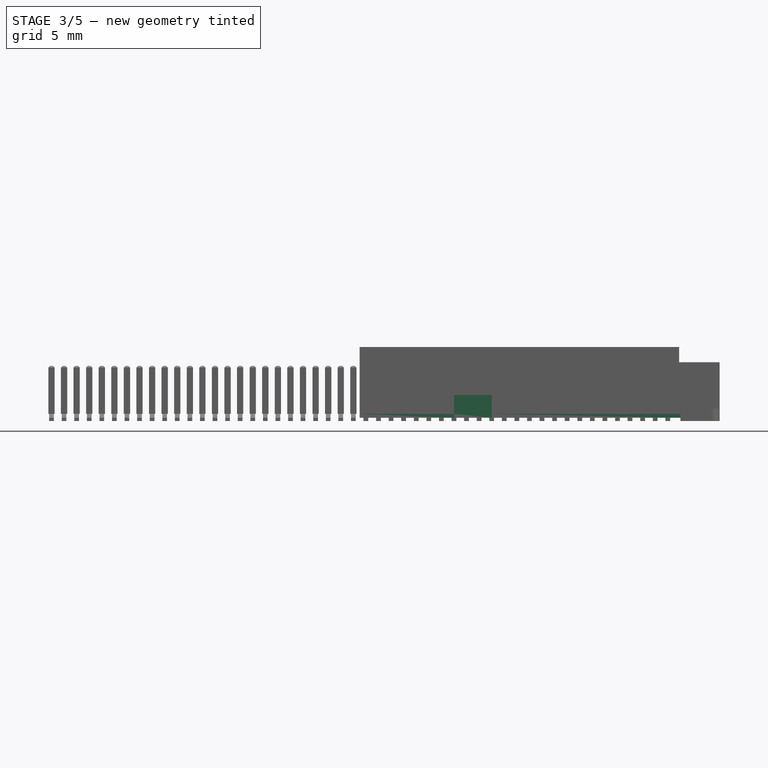
[diagram: stage 3 of 5 — front view after this stage's code; geometry added in this stage tinted green]
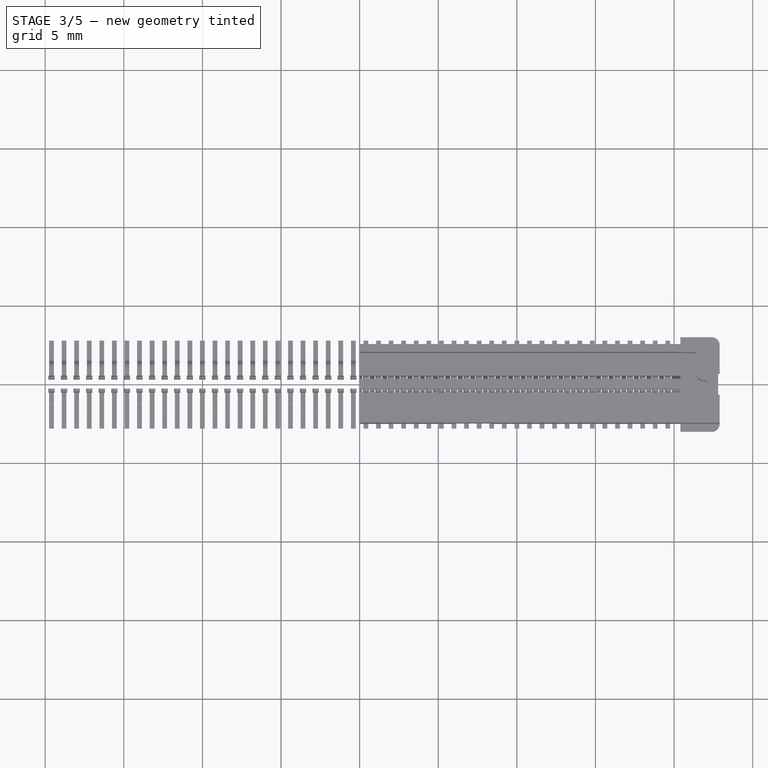
[diagram: stage 3 of 5 — top view after this stage's code; geometry added in this stage tinted green]
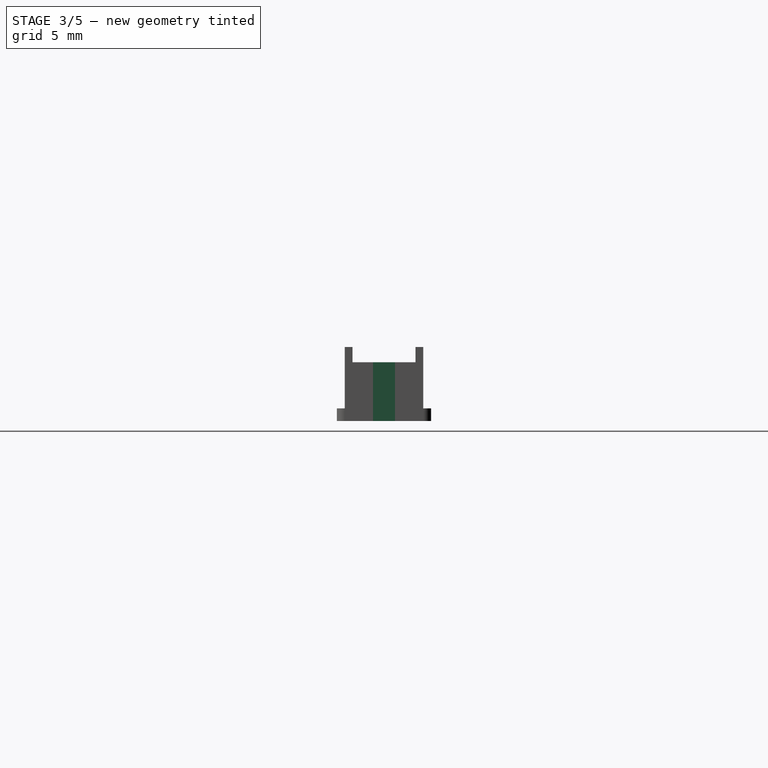
[diagram: stage 3 of 5 — right view after this stage's code; geometry added in this stage tinted green]
FEATURE [Sketcher::SketchObject] Sketch007
  ArcFitTolerance = 0
  AttachmentSupport = -> [XY_Plane]
  FullyConstrained = true
  MakeInternals = false
  MapMode = 5
  expr: Constraints[18] = <<Master>>.width
  expr: Constraints[21] = <<Master>>.length_tot / 2
  sketch-geometry (19):
    g0: LineSegment StartX=0 StartY=2.5 StartZ=0 EndX=20.4 EndY=2.5 EndZ=0
    g1: LineSegment StartX=20.4 StartY=2.5 StartZ=0 EndX=20.4 EndY=2.2 EndZ=0
    g2: LineSegment StartX=20.4 StartY=2.2 StartZ=0 EndX=0 EndY=2.2 EndZ=0
    g3: LineSegment StartX=0 StartY=2.2 StartZ=0 EndX=0 EndY=2.5 EndZ=0
    g4: LineSegment StartX=0 StartY=-2.2 StartZ=0 EndX=20.4 EndY=-2.2 EndZ=0
    g5: LineSegment StartX=20.4 StartY=-2.2 StartZ=0 EndX=20.4 EndY=-2.5 EndZ=0
    g6: LineSegment StartX=20.4 StartY=-2.5 StartZ=0 EndX=0 EndY=-2.5 EndZ=0
    g7: LineSegment StartX=0 StartY=-2.5 StartZ=0 EndX=0 EndY=-2.2 EndZ=0
    g8: LineSegment StartX=20.4 StartY=-1.82 StartZ=0 EndX=0 EndY=-1.82 EndZ=0
    g9: LineSegment StartX=0 StartY=1.82 StartZ=0 EndX=20.4 EndY=1.82 EndZ=0
    g10: LineSegment [constr] StartX=0 StartY=2.2 StartZ=0 EndX=0 EndY=1.82 EndZ=0
    g11: LineSegment [constr] StartX=0 StartY=-1.82 StartZ=0 EndX=0 EndY=-2.2 EndZ=0
    g12: LineSegment [constr] StartX=20.4 StartY=2.2 StartZ=0 EndX=20.4 EndY=1.82 EndZ=0
    g13: LineSegment [constr] StartX=20.4 StartY=-1.82 StartZ=0 EndX=20.4 EndY=-2.2 EndZ=0
    g14: LineSegment StartX=20.4 StartY=1.82 StartZ=0 EndX=20.4 EndY=-1.82 EndZ=0
    g15: LineSegment StartX=0 StartY=1.82 StartZ=0 EndX=0 EndY=-1.82 EndZ=0
    g16: LineSegment [constr] StartX=22.9 StartY=2.5 StartZ=0 EndX=22.9 EndY=-2.5 EndZ=0
    g17: LineSegment [constr] StartX=20.4 StartY=2.5 StartZ=0 EndX=22.9 EndY=2.5 EndZ=0
    g18: LineSegment [constr] StartX=20.4 StartY=-2.5 StartZ=0 EndX=22.9 EndY=-2.5 EndZ=0
  constraints (51):
    c: Horizontal(g0)
    c: Horizontal(g2)
    c: Horizontal(g9)
    c: Horizontal(g8)
    c: Horizontal(g4)
    c: Horizontal(g6)
    c: Vertical(g15)
    c: Vertical(g14)
    c: Vertical(g3)
    c: Vertical(g10)
    c: Vertical(g11)
    c: Vertical(g7)
    c: Vertical(g1)
    c: Vertical(g12)
    c: Vertical(g13)
    c: Vertical(g5)
    c: Equal(g12,g13)
    c: Equal(g1,g5)
    c: DistanceY(g16,g16) = 5
    c: Symmetric(g16,g16,g-1)
    c: PointOnObject(g0,g-2)
    c: DistanceX(g0,g16) = 22.9
    c: DistanceY(g1,g1) = 0.3
    c: DistanceY(g12,g12) = 0.38
    c: Coincident(g17,g0)
    c: Coincident(g17,g16)
    c: Horizontal(g17)
    c: Coincident(g18,g5)
    c: Coincident(g18,g16)
    c: Horizontal(g18)
    c: DistanceX(g18,g18) = 2.5
    c: Coincident(g0,g1)
    c: Coincident(g1,g2)
    c: Coincident(g1,g12)
    c: Coincident(g12,g9)
    c: Coincident(g9,g14)
    c: Coincident(g14,g8)
    c: Coincident(g13,g8)
    c: Coincident(g13,g4)
    c: Coincident(g5,g4)
    c: Coincident(g6,g5)
    c: Coincident(g3,g0)
    c: Coincident(g3,g2)
    c: Coincident(g10,g2)
    c: Coincident(g10,g9)
    c: Coincident(g15,g9)
    c: Coincident(g15,g8)
    c: Coincident(g11,g4)
    c: Coincident(g4,g7)
    c: Coincident(g7,g6)
    c: Coincident(g11,g8)
FEATURE [PartDesign::Pocket] Pocket004
  BaseFeature = -> Pocket003
  Direction = (0,0,-1)
  Length = 0.45
  Length2 = 5
  Profile = -> Sketch007
  ReferenceAxis = -> Sketch007 [N_Axis]
  Reversed = true
  Suppressed = false
  Type = 0
FEATURE [Sketcher::SketchObject] Sketch008
  ArcFitTolerance = 0
  AttachmentSupport = -> [XY_Plane]
  FullyConstrained = true
  MakeInternals = false
  MapMode = 5
  expr: Constraints[13] = <<Master>>.pin_pitch / 2
  expr: Constraints[14] = 1 mm / 2 - 0.19 mm
  sketch-geometry (6):
    g0: LineSegment StartX=0.1535 StartY=0.52 StartZ=0 EndX=0.6465 EndY=0.52 EndZ=0
    g1: LineSegment StartX=0.6465 StartY=0.52 StartZ=0 EndX=0.6465 EndY=0.31 EndZ=0
    g2: LineSegment StartX=0.6465 StartY=0.31 StartZ=0 EndX=0.1535 EndY=0.31 EndZ=0
    g3: LineSegment StartX=0.1535 StartY=0.31 StartZ=0 EndX=0.1535 EndY=0.52 EndZ=0
    g4: LineSegment [constr] StartX=0.1535 StartY=0.52 StartZ=0 EndX=0.4 EndY=0.415 EndZ=0
    g5: LineSegment [constr] StartX=0.4 StartY=0.415 StartZ=0 EndX=0.6465 EndY=0.31 EndZ=0
  constraints (17):
    c: Coincident(g0,g1)
    c: Coincident(g1,g2)
    c: Coincident(g2,g3)
    c: Coincident(g3,g0)
    c: Horizontal(g0)
    c: Horizontal(g2)
    c: Vertical(g1)
    c: Vertical(g3)
    c: Coincident(g4,g0)
    c: Coincident(g5,g4)
    c: Coincident(g5,g1)
    c: Parallel(g4,g5)
    c: Equal(g4,g5)
    c: DistanceX(g-1,g4) = 0.4
    c: DistanceY(g-1,g2) = 0.31
    c: DistanceY(g1,g1) = 0.21
    c: DistanceX(g0,g0) = 0.493
FEATURE [PartDesign::LinearPattern] LinearPattern
  Direction = -> Sketch008 [H_Axis]
  Length = 19.2
  Mode = 0
  Occurrences = 25
  Offset = 0.8
  Suppressed = false
  TransformMode = 0
  expr: Length = <<Master>>.pin_pitch * (<<Master>>.pins_side / 2 - 1)
  expr: Occurrences = <<Master>>.pins_side / 2
FEATURE [PartDesign::Mirrored] Mirrored
  MirrorPlane = -> Sketch008 [H_Axis]
  Suppressed = false
  TransformMode = 0
FEATURE [PartDesign::Pocket] Pocket005
  BaseFeature = -> Pocket004
  Direction = (0,0,-1)
  Length = 5
  Length2 = 5
  Midplane = true
  Profile = -> Sketch008
  ReferenceAxis = -> Sketch008 [N_Axis]
  Suppressed = false
  Type = 1
FEATURE [PartDesign::MultiTransform] MultiTransform
  BaseFeature = -> Pocket005
  Originals = -> [Pocket005]
  Suppressed = false
  TransformMode = 0
  Transformations = -> [LinearPattern,Mirrored]
FEATURE [Sketcher::SketchObject] Sketch009
  ArcFitTolerance = 0
  AttachmentSupport = -> [XY_Plane]
  FullyConstrained = true
  MakeInternals = false
  MapMode = 5
  expr: Constraints[10] = <<Master>>.width
  expr: Constraints[16] = <<Master>>.length_tot / 2
  sketch-geometry (6):
    g0: LineSegment StartX=22.8 StartY=0.7 StartZ=0 EndX=22.9 EndY=0.7 EndZ=0
    g1: LineSegment StartX=22.9 StartY=0.7 StartZ=0 EndX=22.9 EndY=-0.7 EndZ=0
    g2: LineSegment StartX=22.9 StartY=-0.7 StartZ=0 EndX=22.8 EndY=-0.7 EndZ=0
    g3: LineSegment StartX=22.8 StartY=-0.7 StartZ=0 EndX=22.8 EndY=0.7 EndZ=0
    g4: LineSegment [constr] StartX=22.9 StartY=0.7 StartZ=0 EndX=22.9 EndY=2.5 EndZ=0
    g5: LineSegment [constr] StartX=22.9 StartY=-0.7 StartZ=0 EndX=22.9 EndY=-2.5 EndZ=0
  constraints (17):
    c: DistanceY(g1,g1) = 1.4
    c: DistanceX(g2,g2) = 0.1
    c: Vertical(g3)
    c: Horizontal(g0)
    c: Horizontal(g2)
    c: Coincident(g4,g0)
    c: Vertical(g4)
    c: Coincident(g5,g1)
    c: Vertical(g5)
    c: Equal(g5,g4)
    c: DistanceY(g5,g4) = 5
    c: Coincident(g0,g1)
    c: Coincident(g1,g2)
    c: Coincident(g0,g3)
    c: Coincident(g2,g3)
    c: Symmetric(g0,g1,g-1)
    c: DistanceX(g-1,g4) = 22.9
FEATURE [PartDesign::Pocket] Pocket006
  BaseFeature = -> MultiTransform
  Direction = (0,0,-1)
  Length = 5
  Length2 = 5
  Midplane = true
  Profile = -> Sketch009
  ReferenceAxis = -> Sketch009 [N_Axis]
  Suppressed = false
  Type = 1
FEATURE [Sketcher::SketchObject] Sketch010
  ArcFitTolerance = 0
  AttachmentSupport = -> [XY_Plane]
  FullyConstrained = true
  MakeInternals = false
  MapMode = 5
  expr: Constraints[26] = <<Master>>.width
  sketch-geometry (10):
    g0: LineSegment StartX=6 StartY=2.5 StartZ=0 EndX=8.4 EndY=2.5 EndZ=0
    g1: LineSegment StartX=8.4 StartY=2.5 StartZ=0 EndX=8.4 EndY=2.2 EndZ=0
    g2: LineSegment StartX=8.4 StartY=2.2 StartZ=0 EndX=6 EndY=2.2 EndZ=0
    g3: LineSegment StartX=6 StartY=2.2 StartZ=0 EndX=6 EndY=2.5 EndZ=0
    g4: LineSegment StartX=6 StartY=-2.2 StartZ=0 EndX=8.4 EndY=-2.2 EndZ=0
    g5: LineSegment StartX=8.4 StartY=-2.2 StartZ=0 EndX=8.4 EndY=-2.5 EndZ=0
    g6: LineSegment StartX=8.4 StartY=-2.5 StartZ=0 EndX=6 EndY=-2.5 EndZ=0
    g7: LineSegment StartX=6 StartY=-2.5 StartZ=0 EndX=6 EndY=-2.2 EndZ=0
    g8: LineSegment [constr] StartX=8.4 StartY=2.2 StartZ=0 EndX=8.4 EndY=-2.2 EndZ=0
    g9: LineSegment [constr] StartX=6 StartY=2.5 StartZ=0 EndX=0 EndY=2.5 EndZ=0
  constraints (28):
    c: Coincident(g0,g1)
    c: Coincident(g1,g2)
    c: Coincident(g2,g3)
    c: Coincident(g3,g0)
    c: Horizontal(g0)
    c: Horizontal(g2)
    c: Vertical(g1)
    c: Vertical(g3)
    c: Coincident(g4,g5)
    c: Coincident(g5,g6)
    c: Coincident(g6,g7)
    c: Coincident(g7,g4)
    c: Horizontal(g4)
    c: Horizontal(g6)
    c: Vertical(g5)
    c: Vertical(g7)
    c: DistanceX(g0) = 2.4
    c: Equal(g0,g6)
    c: Coincident(g8,g1)
    c: Coincident(g8,g4)
    c: Equal(g1,g5)
    c: Coincident(g9,g0)
    c: PointOnObject(g9,g-2)
    c: Horizontal(g9)
    c: DistanceY(g1,g1) = 0.3
    c: DistanceX(g9,g9) = 6
    c: DistanceY(g5,g0) = 5
    c: Symmetric(g1,g4,g-1)
FEATURE [PartDesign::Pocket] Pocket007
  BaseFeature = -> Pocket006
  Direction = (0,0,-1)
  Length = 1.65
  Length2 = 5
  Profile = -> Sketch010
  ReferenceAxis = -> Sketch010 [N_Axis]
  Reversed = true
  Suppressed = false
  Type = 0
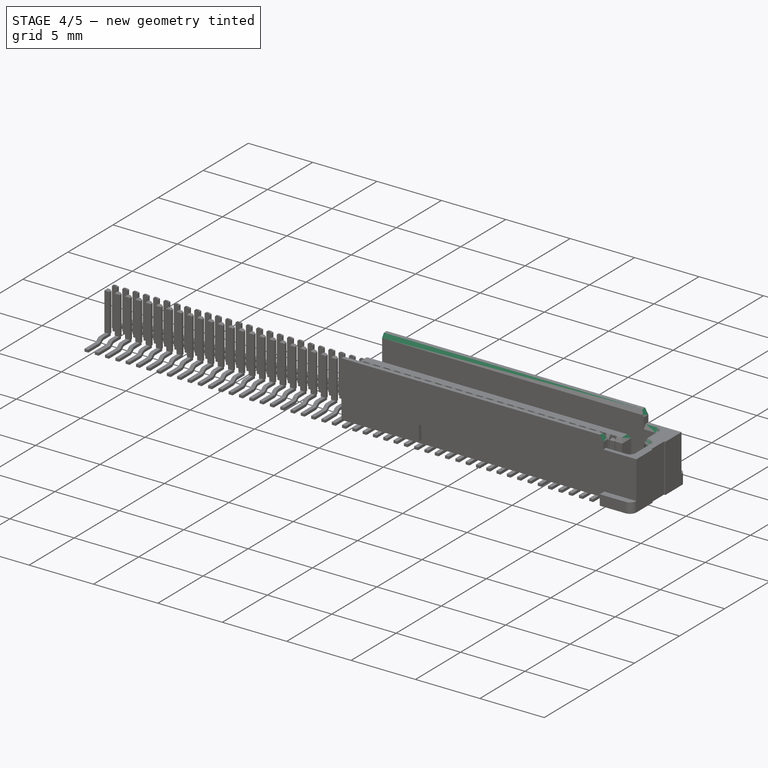
[diagram: stage 4 of 5 — iso view after this stage's code; geometry added in this stage tinted green]
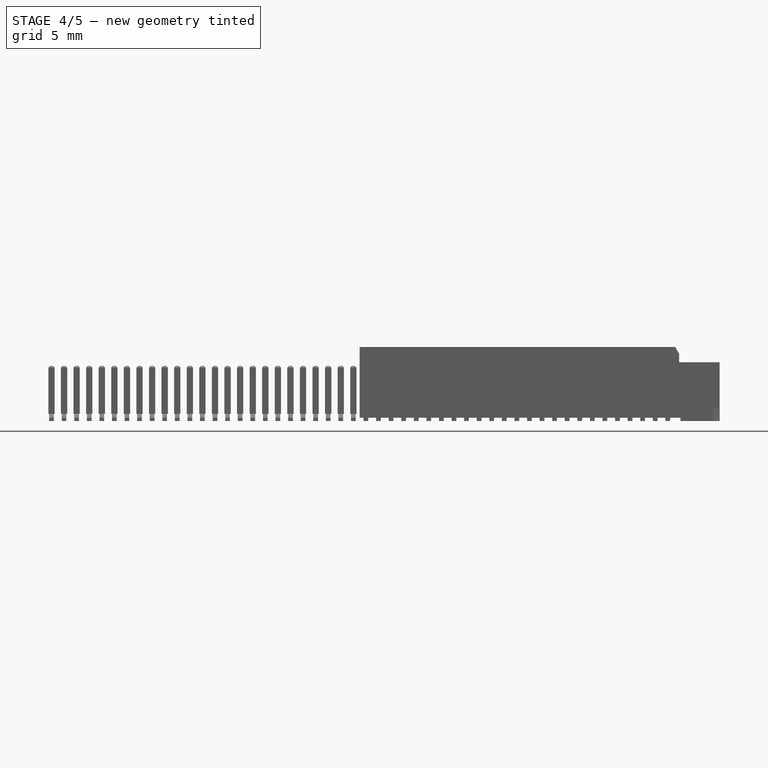
[diagram: stage 4 of 5 — front view after this stage's code; geometry added in this stage tinted green]
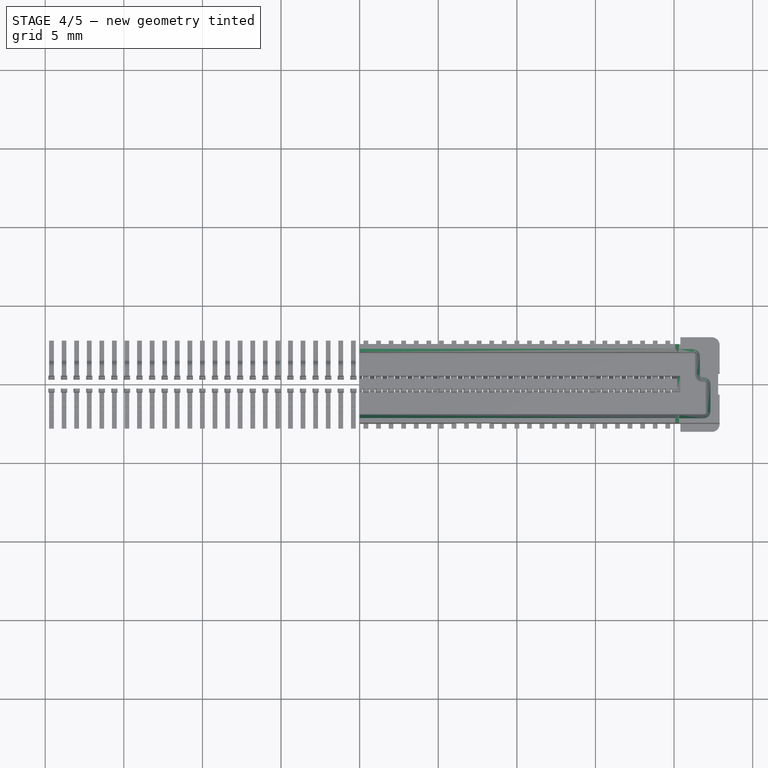
[diagram: stage 4 of 5 — top view after this stage's code; geometry added in this stage tinted green]
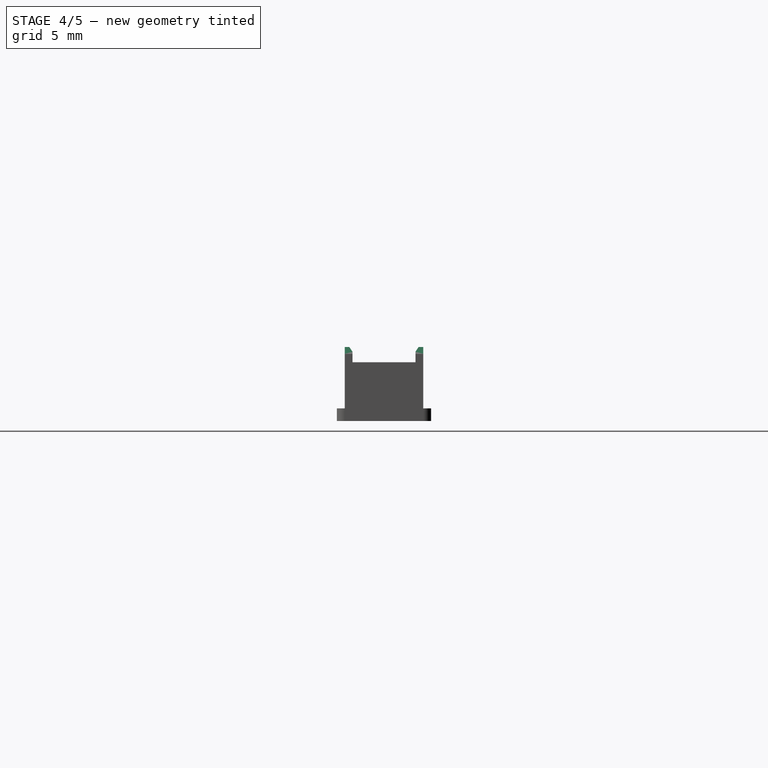
[diagram: stage 4 of 5 — right view after this stage's code; geometry added in this stage tinted green]
FEATURE [PartDesign::Chamfer] Chamfer
  Angle = 45
  Base = -> Pocket007 [Edge401]
  BaseFeature = -> Pocket007
  ChamferType = 1
  FlipDirection = false
  Size = 0.19
  Size2 = 0.3
  SupportTransform = false
  Suppressed = false
  UseAllEdges = false
FEATURE [PartDesign::Chamfer] Chamfer001
  Angle = 45
  Base = -> Chamfer [Edge1010]
  BaseFeature = -> Chamfer
  ChamferType = 0
  FlipDirection = false
  Size = 0.1
  Size2 = 1
  SupportTransform = false
  Suppressed = false
  UseAllEdges = false
FEATURE [PartDesign::Chamfer] Chamfer002
  Angle = 45
  Base = -> Chamfer001 [Edge585]
  BaseFeature = -> Chamfer001
  ChamferType = 1
  FlipDirection = false
  Size = 0.3
  Size2 = 0.2
  SupportTransform = false
  Suppressed = false
  UseAllEdges = false
FEATURE [PartDesign::Chamfer] Chamfer003
  Angle = 45
  Base = -> Chamfer002 [Edge616,Edge7]
  BaseFeature = -> Chamfer002
  ChamferType = 1
  FlipDirection = false
  Size = 0.3
  Size2 = 0.2
  SupportTransform = false
  Suppressed = false
  UseAllEdges = false
FEATURE [PartDesign::Chamfer] Chamfer004
  Angle = 45
  Base = -> Chamfer003 [Edge37]
  BaseFeature = -> Chamfer003
  ChamferType = 1
  FlipDirection = false
  Size = 0.43
  Size2 = 0.25
  SupportTransform = false
  Suppressed = false
  UseAllEdges = false
FEATURE [PartDesign::Chamfer] Chamfer005
  Angle = 45
  Base = -> Chamfer004 [Edge610]
  BaseFeature = -> Chamfer004
  ChamferType = 1
  FlipDirection = true
  Size = 0.43
  Size2 = 0.25
  SupportTransform = false
  Suppressed = false
  UseAllEdges = false
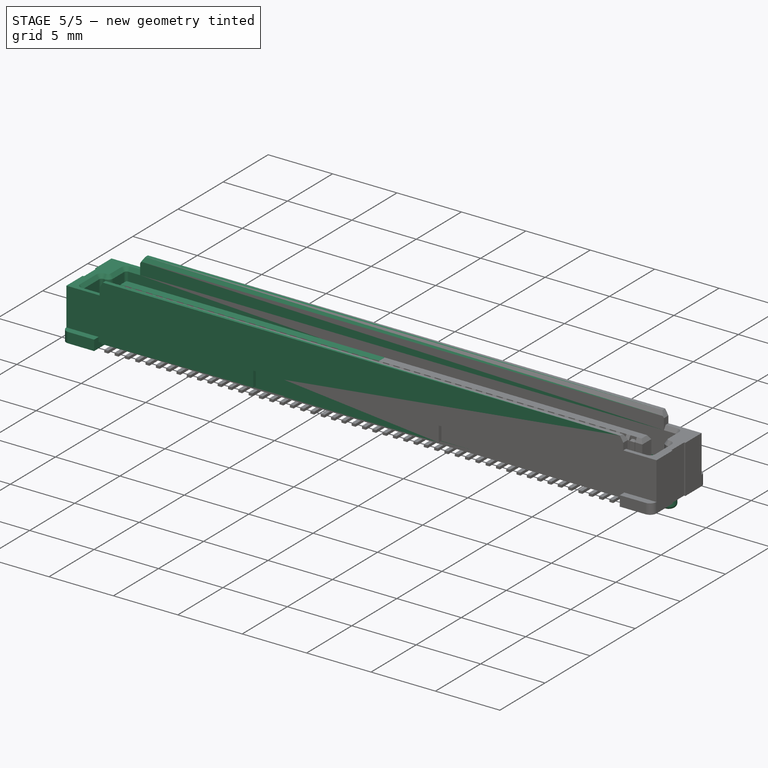
[diagram: stage 5 of 5 — iso view after this stage's code; geometry added in this stage tinted green]
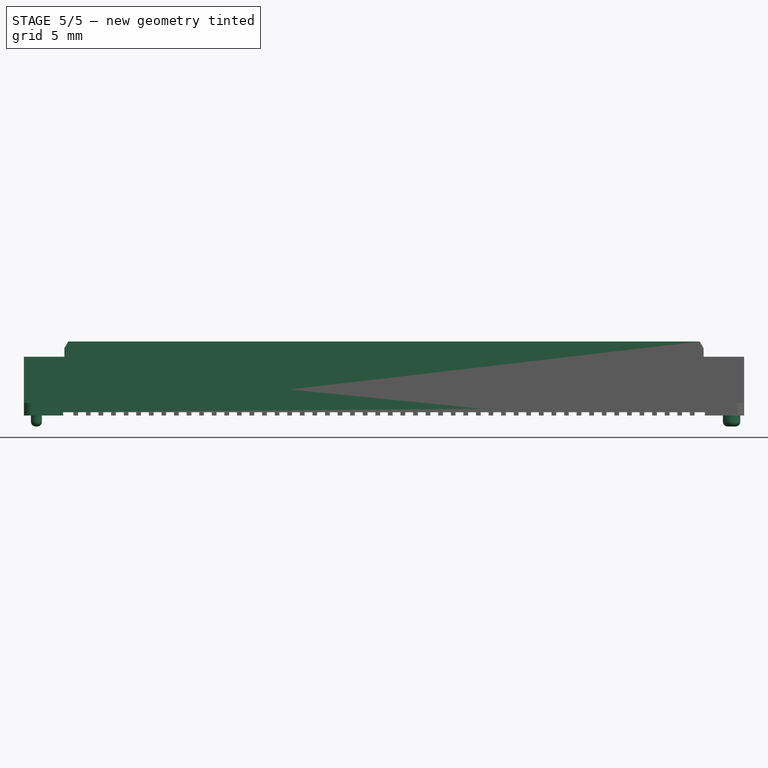
[diagram: stage 5 of 5 — front view after this stage's code; geometry added in this stage tinted green]
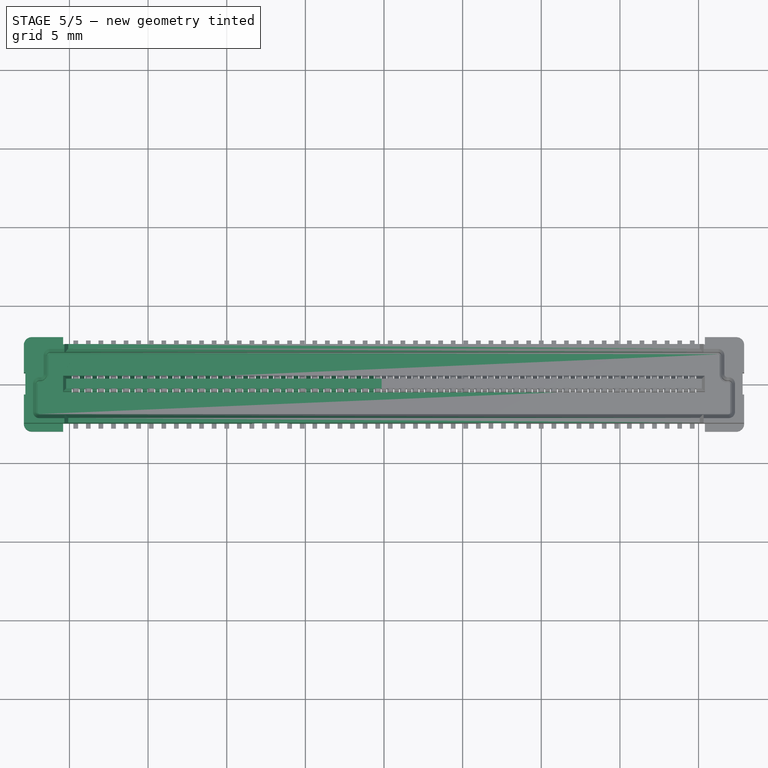
[diagram: stage 5 of 5 — top view after this stage's code; geometry added in this stage tinted green]
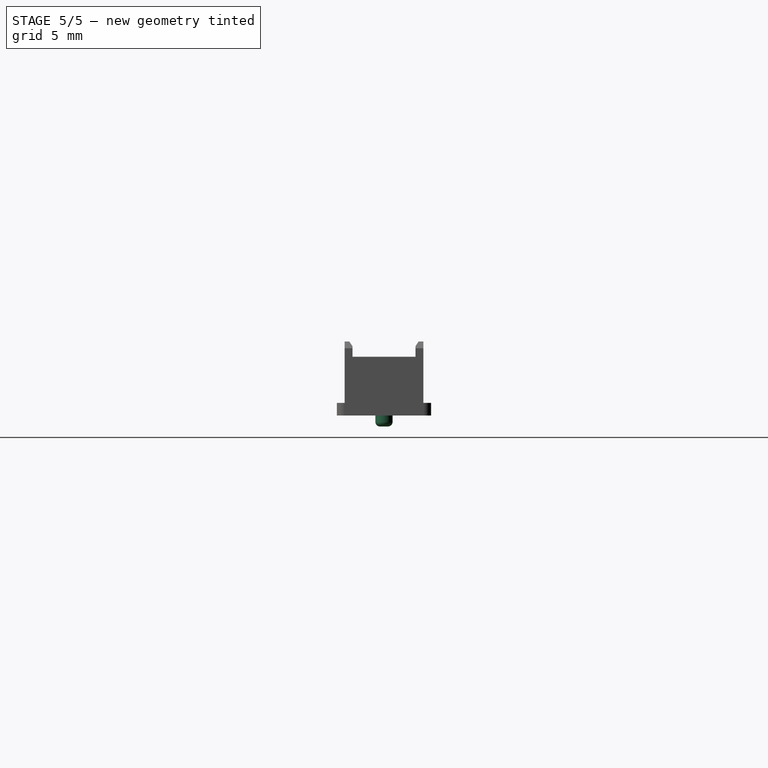
[diagram: stage 5 of 5 — right view after this stage's code; geometry added in this stage tinted green]
FEATURE [PartDesign::Body] Body
  AllowCompound = false
  Group = -> [DatumPlane,Sketch001,Pad,Sketch002,Pocket,Sketch003,Pocket001,Sketch004,Pocket002,Sketch005,Pad001,Sketch006,Pocket003,Sketch007,Pocket004,Sketch008,Pocket005,MultiTransform,LinearPattern,Mirrored,Sketch009,Pocket006,Sketch010,Pocket007,Chamfer,Chamfer001,Chamfer002,Chamfer003,Chamfer004,Chamfer005]
  Origin = -> Origin
  Tip = -> Chamfer005
FEATURE [Part::Mirroring] Part__Mirroring  label="Body (Mirror #1)"
  Base = (0,0,0)
  Normal = (1,0,0)
  Source = -> Body
FEATURE [Part::MultiFuse] Fusion
  Refine = true
  Shapes = -> [Part__Mirroring,Body]
FEATURE [PartDesign::FeatureBase] BaseFeature
  BaseFeature = -> Fusion
  Suppressed = false
FEATURE [PartDesign::Plane] DatumPlane001
  AttachmentOffset = pos=(0,0,1.3) rot=(0,0,1;0rad)
  AttachmentSupport = -> [XY_Plane001]
  Length = 60
  MapMode = 5
  Placement = pos=(0,0,1.3) rot=(0,0,1;0rad)
  ResizeMode = 0
  Width = 60
FEATURE [Sketcher::SketchObject] Sketch011
  ArcFitTolerance = 0
  AttachmentSupport = -> [XY_Plane001]
  FullyConstrained = true
  MakeInternals = false
  MapMode = 2
  expr: Constraints[4] = <<Master>>.key
  sketch-geometry (2):
    g0: Circle CenterX=22.1 CenterY=0 CenterZ=0 NormalX=0 NormalY=0 NormalZ=1 AngleXU=0 Radius=0.55
    g1: Circle CenterX=-22.1 CenterY=0 CenterZ=0 NormalX=0 NormalY=0 NormalZ=1 AngleXU=0 Radius=0.35
  constraints (5):
    c: PointOnObject(g0,g-1)
    c: Diameter(g1) = 0.7
    c: Diameter(g0) = 1.1
    c: Symmetric(g1,g0,g-2)
    c: DistanceX(g1,g0) = 44.2
FEATURE [PartDesign::Pad] Pad002
  BaseFeature = -> BaseFeature
  Direction = (0,0,1)
  Length = 0.7
  Length2 = 10
  Profile = -> Sketch011
  ReferenceAxis = -> Sketch011 [N_Axis]
  Reversed = true
  Suppressed = false
  Type = 0
FEATURE [Sketcher::SketchObject] Sketch013
  ArcFitTolerance = 0
  AttachmentSupport = -> [DatumPlane001]
  FullyConstrained = true
  MakeInternals = false
  MapMode = 5
  Placement = pos=(0,0,1.3) rot=(0,0,1;0rad)
  expr: Constraints[22] = <<Master>>.width
  expr: Constraints[24] = <<Master>>.length_tot / 2
  sketch-geometry (10):
    g0: LineSegment StartX=-20.6 StartY=1.6 StartZ=0 EndX=-19.8 EndY=1.6 EndZ=0
    g1: LineSegment StartX=-19.8 StartY=1.6 StartZ=0 EndX=-19.8 EndY=0.8 EndZ=0
    g2: LineSegment StartX=-19.8 StartY=0.8 StartZ=0 EndX=-20.6 EndY=0.8 EndZ=0
    g3: LineSegment StartX=-20.6 StartY=0.8 StartZ=0 EndX=-20.6 EndY=1.6 EndZ=0
    g4: LineSegment StartX=-20.2 StartY=1 StartZ=0 EndX=-19.9691 EndY=1.4 EndZ=0
    g5: LineSegment StartX=-19.9691 StartY=1.4 StartZ=0 EndX=-20.4309 EndY=1.4 EndZ=0
    g6: LineSegment StartX=-20.4309 StartY=1.4 StartZ=0 EndX=-20.2 EndY=1 EndZ=0
    g7: LineSegment [constr] StartX=-19.9691 StartY=1.4 StartZ=0 EndX=-20.6 EndY=1.4 EndZ=0
    g8: LineSegment [constr] StartX=-20.4309 StartY=1.4 StartZ=0 EndX=-19.8 EndY=1.4 EndZ=0
    g9: LineSegment [constr] StartX=-22.9 StartY=2.5 StartZ=0 EndX=-22.9 EndY=-2.5 EndZ=0
  constraints (30):
    c: Coincident(g0,g1)
    c: Coincident(g1,g2)
    c: Coincident(g2,g3)
    c: Coincident(g3,g0)
    c: Horizontal(g0)
    c: Horizontal(g2)
    c: Vertical(g1)
    c: Vertical(g3)
    c: Equal(g0,g3)
    c: Coincident(g4,g5)
    c: Horizontal(g5)
    c: Coincident(g5,g6)
    c: Coincident(g6,g4)
    c: Equal(g6,g4)
    c: Equal(g4,g5)
    c: Coincident(g7,g4)
    c: PointOnObject(g7,g3)
    c: Horizontal(g7)
    c: Coincident(g8,g5)
    c: PointOnObject(g8,g1)
    c: Horizontal(g8)
    c: Equal(g8,g7)
    c: DistanceY(g9,g9) = 5
    c: Symmetric(g9,g9,g-1)
    c: DistanceX(g9,g-1) = 22.9
    c: DistanceX(g9,g0) = 2.3
    c: DistanceY(g8,g0) = 0.2
    c: DistanceY(g4,g0) = 0.6
    c: DistanceY(g0,g9) = 0.9
    c: DistanceX(g2,g2) = 0.8
FEATURE [PartDesign::Pocket] Pocket008
  BaseFeature = -> Pad002
  Direction = (0,0,-1)
  Length = 0.07
  Length2 = 5
  Profile = -> Sketch013
  ReferenceAxis = -> Sketch013 [N_Axis]
  Suppressed = false
  Type = 0
FEATURE [PartDesign::Fillet] Fillet
  Base = -> Pocket008 [Edge2259,Edge2251]
  BaseFeature = -> Pocket008
  Radius = 0.3
  SupportTransform = false
  Suppressed = false
  UseAllEdges = false
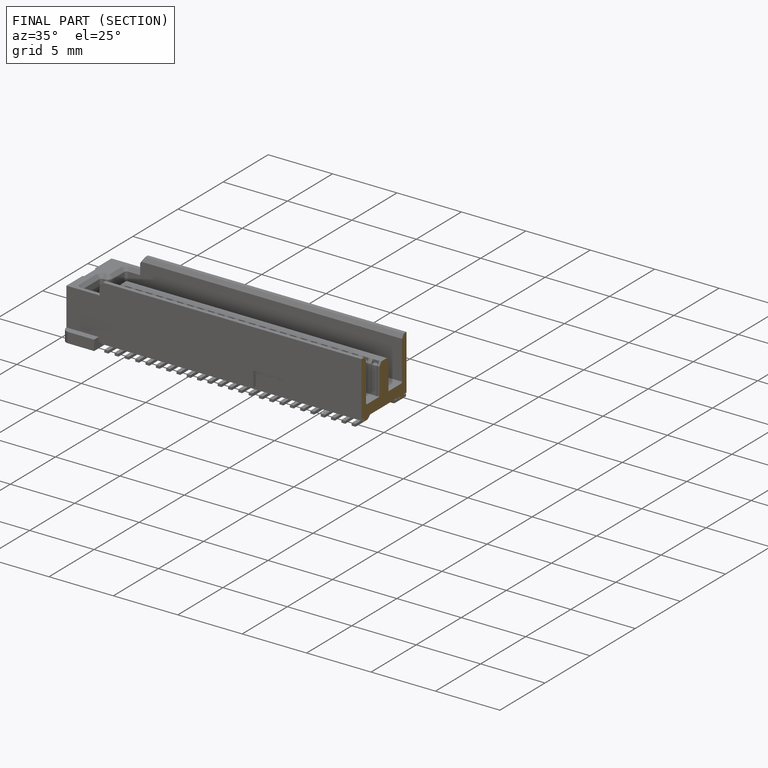
[diagram: finished part — half-section view (interior)]
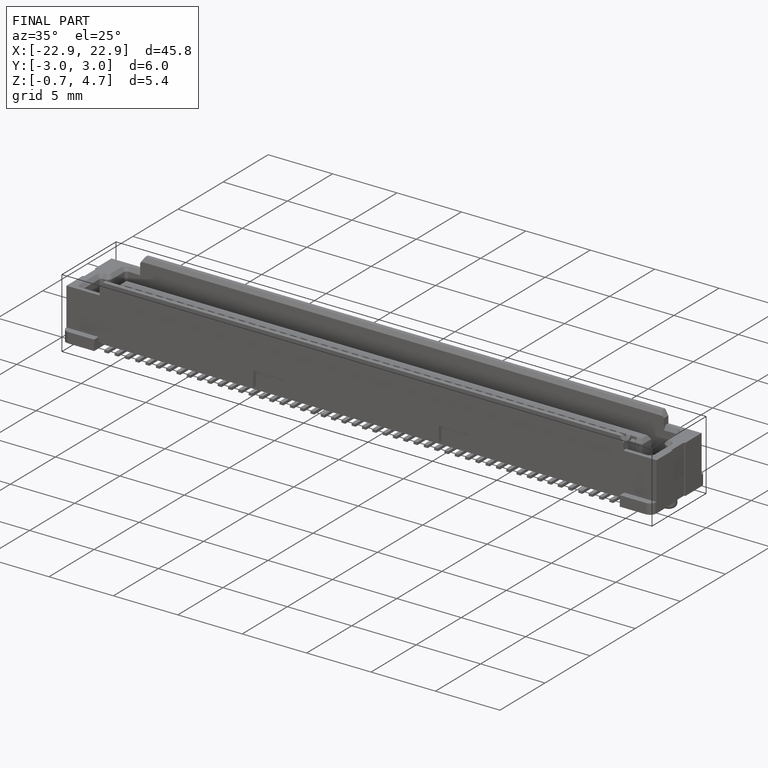
[diagram: finished part — iso view with bounding-box wireframe]
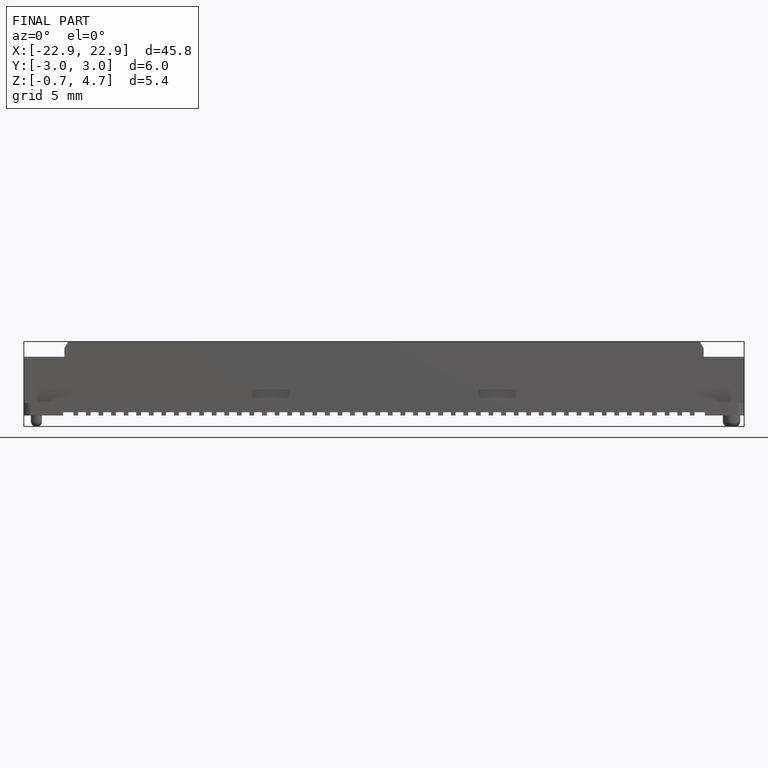
[diagram: finished part — front view with bounding-box wireframe]
